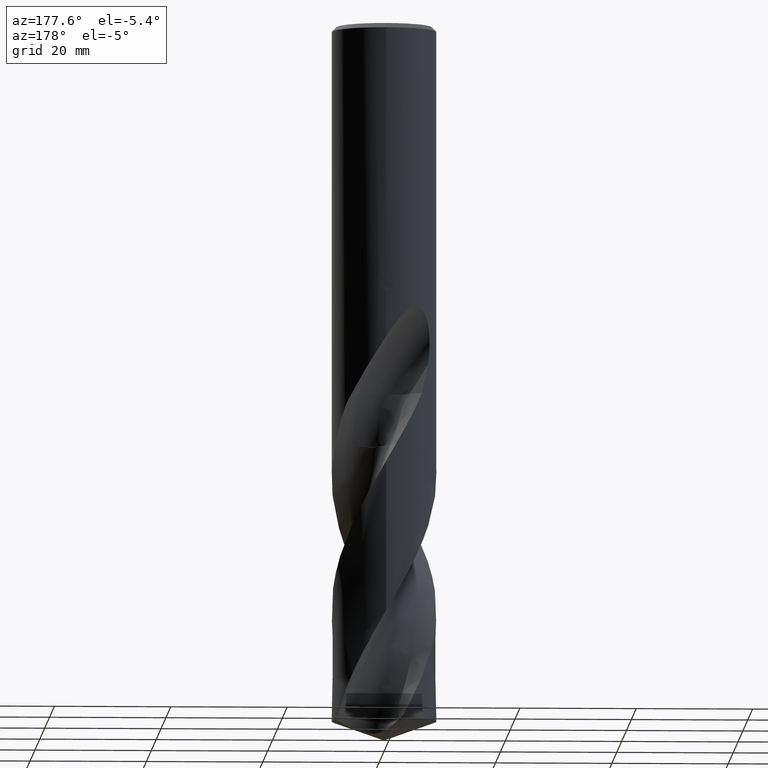
[diagram: clean part render]
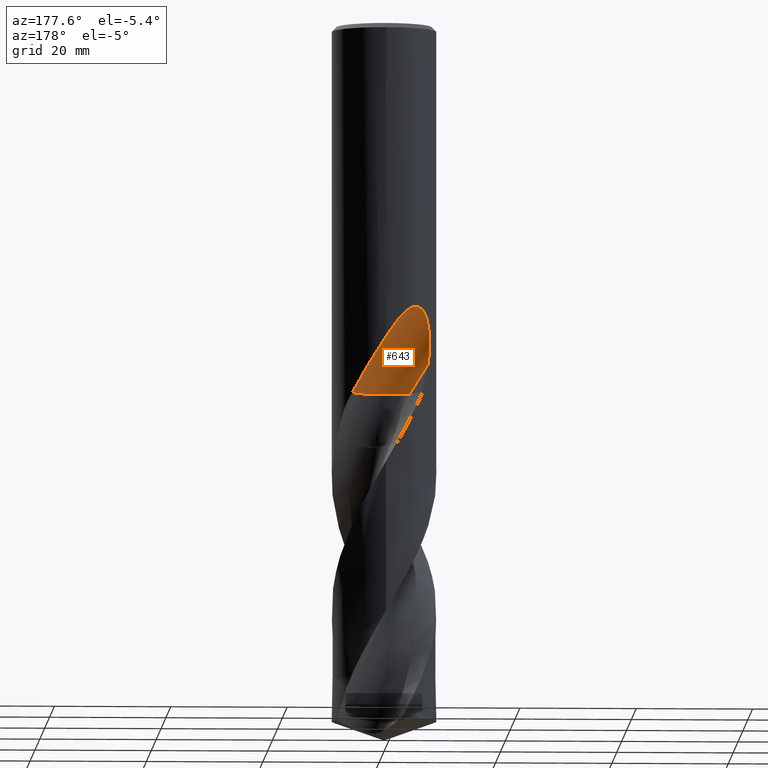
[diagram: same view with one face highlighted and labeled with its STEP entity id]
A machine part, auxiliary view. The second image highlights one B-rep face of the part: STEP entity #643.
In plain terms, the highlighted face is a SurfaceOfRevolution surface.
Its self-contained STEP definition (entity closure, byte-faithful):
#287=VERTEX_POINT('',#764);
#429=EDGE_CURVE('',#287,#635,#918,.T.);
#439=EDGE_CURVE('',#631,#459,#930,.T.);
#459=VERTEX_POINT('',#951);
#463=EDGE_CURVE('',#635,#459,#955,.T.);
#581=EDGE_CURVE('',#715,#631,#1084,.T.);
#583=EDGE_CURVE('',#287,#715,#1086,.T.);
#631=VERTEX_POINT('',#1136);
#635=VERTEX_POINT('',#1141);
#643=ADVANCED_FACE('',(#1149),#1150,.F.);
#715=VERTEX_POINT('',#1232);
#764=CARTESIAN_POINT('',(5.73492168841538,6.93618578382549,-63.613));
#918=B_SPLINE_CURVE_WITH_KNOTS('',3,(#3582,#3583,#3584,#3585,#3586,#3587,#3588,#3589,#3590,#3591,#3592,#3593,#3594,#3595,#3596,#3597,#3598,#3599,#3600,#3601,#3602,#3603,#3604,#3605,#3606,#3607,#3608,#3609,#3610,#3611),.UNSPECIFIED.,.F.,.F.,(4,2,2,2,2,2,2,2,2,2,2,2,2,2,4),(0.0,4.262976817962,6.71123824567215,8.89235029024701,11.4048404132002,14.439323669959,17.2190104172487,18.4220665226547,19.2988195253407,20.1268227676933,21.1747033682268,22.7056772339491,24.8835914108033,26.3262060908725,27.8429149951346),.UNSPECIFIED.);
#930=CIRCLE('',#4229,39.1073391014154);
#951=CARTESIAN_POINT('',(-7.32277946978824,5.23229403195653,-58.6847779476165));
#955=B_SPLINE_CURVE_WITH_KNOTS('',3,(#4316,#4317,#4318,#4319,#4320,#4321,#4322,#4323,#4324,#4325,#4326,#4327,#4328,#4329,#4330,#4331,#4332,#4333,#4334,#4335,#4336,#4337,#4338,#4339,#4340,#4341,#4342,#4343,#4344,#4345),.UNSPECIFIED.,.F.,.F.,(4,2,2,2,2,2,2,2,2,2,2,2,2,2,4),(0.0,4.262976817962,6.71123824567215,8.89235029024701,11.4048404132002,14.439323669959,17.2190104172487,18.4220665226547,19.2988195253407,20.1268227676933,21.1747033682268,22.7056772339491,24.8835914108033,26.3262060908725,27.8429149951346),.UNSPECIFIED.);
#1084=CIRCLE('',#5531,6.0);
#1086=CIRCLE('',#5534,6.0);
#1136=CARTESIAN_POINT('',(-4.24264068704858,4.45735931295143,-63.613));
#1141=CARTESIAN_POINT('',(-3.5404608389987E-013,8.99999999999999,-54.0462201875557));
#1149=FACE_OUTER_BOUND('',#5836,.T.);
#1150=SURFACE_OF_REVOLUTION('',#5837,#5838);
#1232=CARTESIAN_POINT('',(-0.992330408695993,2.78260854453317,-63.613));
#3582=CARTESIAN_POINT('',(5.73492168841538,6.93618578382549,-63.613));
#3583=CARTESIAN_POINT('',(5.16097520996861,7.41073162354472,-62.4027889750849));
#3584=CARTESIAN_POINT('',(4.50323961744615,7.83479698002718,-61.2711019271098));
#3585=CARTESIAN_POINT('',(3.33863412424779,8.37091803405609,-59.3574274257618));
#3586=CARTESIAN_POINT('',(2.9050827720644,8.53057993351529,-58.6626427319012));
#3587=CARTESIAN_POINT('',(2.07108421602223,8.76798261059538,-57.3266821680811));
#3588=CARTESIAN_POINT('',(1.6751227552078,8.85180769196027,-56.6929284197023));
#3589=CARTESIAN_POINT('',(0.821654960508415,8.97429133944253,-55.3318457622516));
#3590=CARTESIAN_POINT('',(0.35783907875574,9.0050340495826,-54.59499863711));
#3591=CARTESIAN_POINT('',(-0.674520373061421,8.99244222771679,-53.0104260437705));
#3592=CARTESIAN_POINT('',(-1.28479671893789,8.93109539021338,-52.1088180874024));
#3593=CARTESIAN_POINT('',(-2.49111116899442,8.6684911601456,-50.5696530359654));
#3594=CARTESIAN_POINT('',(-3.18448431243664,8.455801071121,-49.7866048541027));
#3595=CARTESIAN_POINT('',(-4.21836400145807,7.95773661676292,-49.0748423683708));
#3596=CARTESIAN_POINT('',(-4.55010948894554,7.77538091321022,-48.9039124357592));
#3597=CARTESIAN_POINT('',(-5.1309188963548,7.3999102891269,-48.7715717708757));
#3598=CARTESIAN_POINT('',(-5.36891751792034,7.22906662387628,-48.7681021644199));
#3599=CARTESIAN_POINT('',(-5.81202000666762,6.87720495531981,-48.8798337665017));
#3600=CARTESIAN_POINT('',(-6.00573706071479,6.70733336132403,-48.98534259965));
#3601=CARTESIAN_POINT('',(-6.39965739535663,6.33529758040701,-49.3161457122651));
#3602=CARTESIAN_POINT('',(-6.58187319413711,6.14257158986278,-49.5604689839896));
#3603=CARTESIAN_POINT('',(-6.95509287213978,5.72173002688107,-50.2296896132848));
#3604=CARTESIAN_POINT('',(-7.13362312950999,5.49245108859752,-50.7259809091332));
#3605=CARTESIAN_POINT('',(-7.47013131329357,5.03086986710182,-52.1157578504548));
#3606=CARTESIAN_POINT('',(-7.59232823664957,4.83339010444789,-53.1059009678346));
#3607=CARTESIAN_POINT('',(-7.65533472660837,4.73266218415033,-54.9474239173527));
#3608=CARTESIAN_POINT('',(-7.64192712776332,4.75490007471228,-55.6865422208693));
#3609=CARTESIAN_POINT('',(-7.54267433568995,4.91091079717549,-57.1868491551405));
#3610=CARTESIAN_POINT('',(-7.45330502793184,5.049618923941,-57.9423768577599));
#3611=CARTESIAN_POINT('',(-7.32277946978823,5.23229403195653,-58.6847779476166));
#4229=AXIS2_PLACEMENT_3D('',#8313,#8314,#8315);
#4316=CARTESIAN_POINT('',(5.73492168841538,6.93618578382549,-63.613));
#4317=CARTESIAN_POINT('',(5.16097520996861,7.41073162354472,-62.4027889750849));
#4318=CARTESIAN_POINT('',(4.50323961744615,7.83479698002718,-61.2711019271098));
#4319=CARTESIAN_POINT('',(3.33863412424779,8.37091803405609,-59.3574274257618));
#4320=CARTESIAN_POINT('',(2.9050827720644,8.53057993351529,-58.6626427319012));
#4321=CARTESIAN_POINT('',(2.07108421602223,8.76798261059538,-57.3266821680811));
#4322=CARTESIAN_POINT('',(1.6751227552078,8.85180769196027,-56.6929284197023));
#4323=CARTESIAN_POINT('',(0.821654960508415,8.97429133944253,-55.3318457622516));
#4324=CARTESIAN_POINT('',(0.35783907875574,9.0050340495826,-54.59499863711));
#4325=CARTESIAN_POINT('',(-0.674520373061421,8.99244222771679,-53.0104260437705));
#4326=CARTESIAN_POINT('',(-1.28479671893789,8.93109539021338,-52.1088180874024));
#4327=CARTESIAN_POINT('',(-2.49111116899442,8.6684911601456,-50.5696530359654));
#4328=CARTESIAN_POINT('',(-3.18448431243664,8.455801071121,-49.7866048541027));
#4329=CARTESIAN_POINT('',(-4.21836400145807,7.95773661676292,-49.0748423683708));
#4330=CARTESIAN_POINT('',(-4.55010948894554,7.77538091321022,-48.9039124357592));
#4331=CARTESIAN_POINT('',(-5.1309188963548,7.3999102891269,-48.7715717708757));
#4332=CARTESIAN_POINT('',(-5.36891751792034,7.22906662387628,-48.7681021644199));
#4333=CARTESIAN_POINT('',(-5.81202000666762,6.87720495531981,-48.8798337665017));
#4334=CARTESIAN_POINT('',(-6.00573706071479,6.70733336132403,-48.98534259965));
#4335=CARTESIAN_POINT('',(-6.39965739535663,6.33529758040701,-49.3161457122651));
#4336=CARTESIAN_POINT('',(-6.58187319413711,6.14257158986278,-49.5604689839896));
#4337=CARTESIAN_POINT('',(-6.95509287213978,5.72173002688107,-50.2296896132848));
#4338=CARTESIAN_POINT('',(-7.13362312950999,5.49245108859752,-50.7259809091332));
#4339=CARTESIAN_POINT('',(-7.47013131329357,5.03086986710182,-52.1157578504548));
#4340=CARTESIAN_POINT('',(-7.59232823664957,4.83339010444789,-53.1059009678346));
#4341=CARTESIAN_POINT('',(-7.65533472660837,4.73266218415033,-54.9474239173527));
#4342=CARTESIAN_POINT('',(-7.64192712776332,4.75490007471228,-55.6865422208693));
#4343=CARTESIAN_POINT('',(-7.54267433568995,4.91091079717549,-57.1868491551405));
#4344=CARTESIAN_POINT('',(-7.45330502793184,5.049618923941,-57.9423768577599));
#4345=CARTESIAN_POINT('',(-7.32277946978823,5.23229403195653,-58.6847779476166));
#5531=AXIS2_PLACEMENT_3D('',#8450,#8451,#8452);
#5534=AXIS2_PLACEMENT_3D('',#8453,#8454,#8455);
#5836=EDGE_LOOP('',(#8494,#8495,#8496,#8497,#8498));
#5837=(B_SPLINE_CURVE(3,(#8500,#8501,#8502,#8503,#8504,#8505,#8506,#8507,#8508),.UNSPECIFIED.,.F.,.F.)B_SPLINE_CURVE_WITH_KNOTS((4,1,3,1,4),(-2.85639375994466,-2.55363798270679,-2.25088220546891,-1.94812642823103,-1.64537065099316),.UNSPECIFIED.)RATIONAL_B_SPLINE_CURVE((1.09166106065091,1.03055368688364,0.969446313116363,1.03055368688364,1.09166106065091,1.03055368688364,0.969446313116363,1.03055368688364,1.09166106065091))BOUNDED_CURVE()REPRESENTATION_ITEM('')GEOMETRIC_REPRESENTATION_ITEM()CURVE());
#5838=AXIS1_PLACEMENT('',#8515,#8516);
#8313=CARTESIAN_POINT('',(-3.05088768506864,43.5,-65.5198048031679));
#8314=DIRECTION('',(-0.847998304005088,9.29188155437458E-018,-0.52999894000318));
#8315=DIRECTION('',(-0.053559812253361,-0.994880693138896,0.0856956996053776));
#8450=CARTESIAN_POINT('',(2.44949709595112E-005,8.69997550502904,-63.613));
#8451=DIRECTION('',(0.0,0.0,-1.0));
#8452=DIRECTION('',(0.707102698679602,0.707110863669923,0.0));
#8453=CARTESIAN_POINT('',(2.44949709595112E-005,8.69997550502904,-63.613));
#8454=DIRECTION('',(0.0,0.0,-1.0));
#8455=DIRECTION('',(0.707102698679602,0.707110863669923,0.0));
#8494=ORIENTED_EDGE('',*,*,#429,.F.);
#8495=ORIENTED_EDGE('',*,*,#583,.T.);
#8496=ORIENTED_EDGE('',*,*,#581,.T.);
#8497=ORIENTED_EDGE('',*,*,#439,.T.);
#8498=ORIENTED_EDGE('',*,*,#463,.F.);
#8500=CARTESIAN_POINT('',(-4.24264068704858,4.45735931295143,-63.613));
#8501=CARTESIAN_POINT('',(-3.41171094568551,3.62641997675397,-63.613));
#8502=CARTESIAN_POINT('',(-1.2511070432363,2.44568893748585,-63.613));
#8503=CARTESIAN_POINT('',(1.19744570346445,2.70438655439442,-63.613));
#8504=CARTESIAN_POINT('',(2.28408754768417,3.15172749586161,-63.613));
#8505=CARTESIAN_POINT('',(3.37072939190388,3.59906843732879,-63.613));
#8506=CARTESIAN_POINT('',(5.29174855029729,5.13920492590875,-63.613));
#8507=CARTESIAN_POINT('',(5.99487352307005,7.4988553837167,-63.613));
#8508=CARTESIAN_POINT('',(5.99996810818737,8.67396323439444,-63.613));
#8515=CARTESIAN_POINT('',(-3.05088768506864,43.5,-65.5198048031679));
#8516=DIRECTION('',(0.847998304005088,-0.0,0.52999894000318));